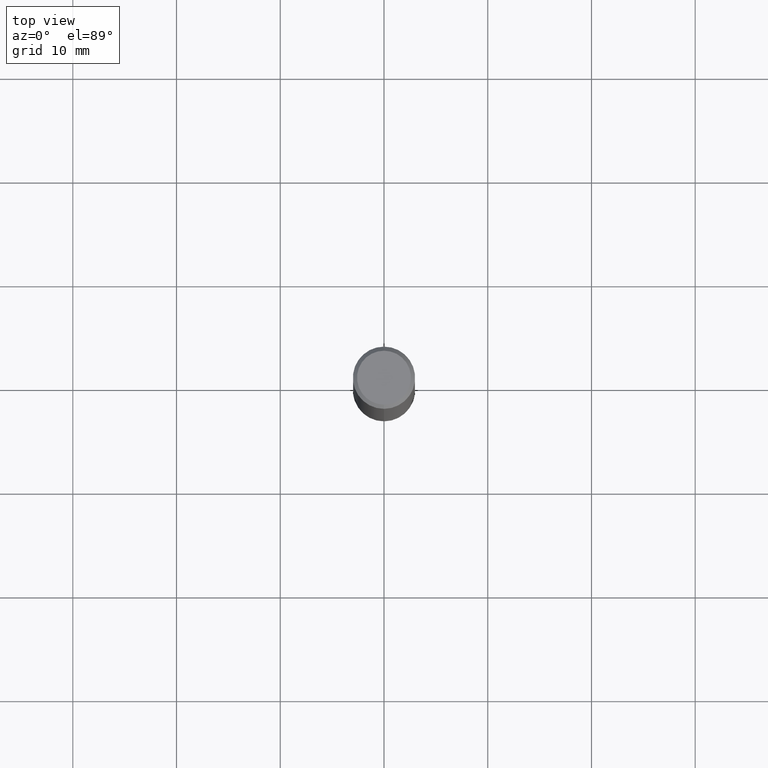
[diagram: clean part render]
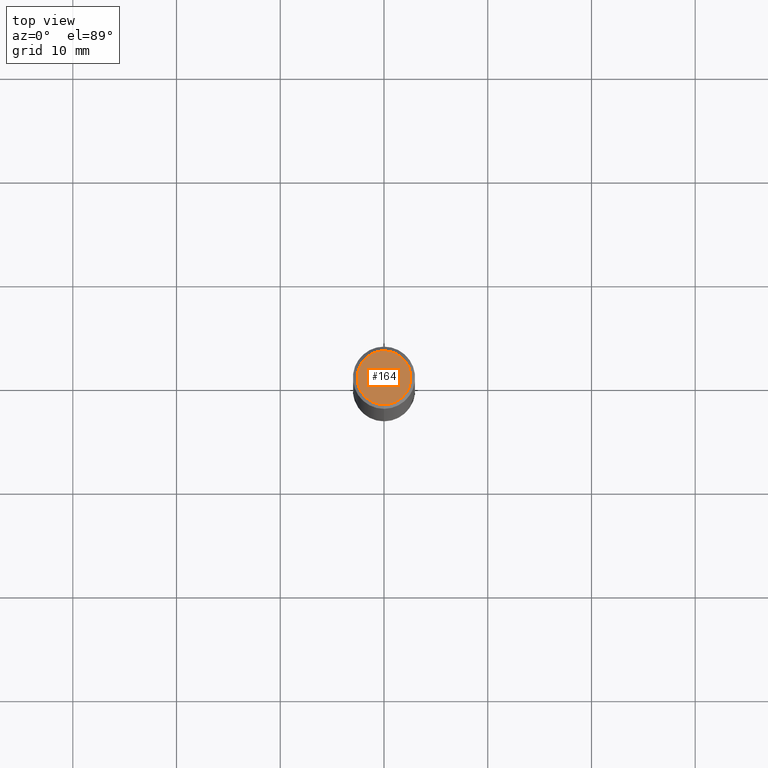
[diagram: same view with one face highlighted and labeled with its STEP entity id]
A machine part, top view. The second image highlights one B-rep face of the part: STEP entity #164.
In plain terms, the highlighted planar face has unit normal (-0, 0, 1).
Its self-contained STEP definition (entity closure, byte-faithful):
#114=EDGE_CURVE('',#188,#168,#277,.T.);
#164=ADVANCED_FACE('',(#334),#335,.T.);
#168=VERTEX_POINT('',#340);
#188=VERTEX_POINT('',#362);
#238=EDGE_CURVE('',#168,#188,#419,.T.);
#277=CIRCLE('',#454,2.6);
#334=FACE_OUTER_BOUND('',#528,.T.);
#335=PLANE('',#529);
#340=CARTESIAN_POINT('',(0.0,2.6,0.0));
#362=CARTESIAN_POINT('',(3.18397651993818E-016,-2.6,0.0));
#419=CIRCLE('',#631,2.6);
#454=AXIS2_PLACEMENT_3D('',#659,#660,#661);
#528=EDGE_LOOP('',(#737,#738));
#529=AXIS2_PLACEMENT_3D('',#739,#740,#741);
#631=AXIS2_PLACEMENT_3D('',#844,#845,#846);
#659=CARTESIAN_POINT('',(0.0,0.0,0.0));
#660=DIRECTION('',(0.0,0.0,-1.0));
#661=DIRECTION('',(0.0,1.0,0.0));
#737=ORIENTED_EDGE('',*,*,#238,.F.);
#738=ORIENTED_EDGE('',*,*,#114,.F.);
#739=CARTESIAN_POINT('',(0.0,1.3,0.0));
#740=DIRECTION('',(-0.0,0.0,1.0));
#741=DIRECTION('',(0.0,-1.0,0.0));
#844=CARTESIAN_POINT('',(0.0,0.0,0.0));
#845=DIRECTION('',(0.0,0.0,-1.0));
#846=DIRECTION('',(0.0,1.0,0.0));